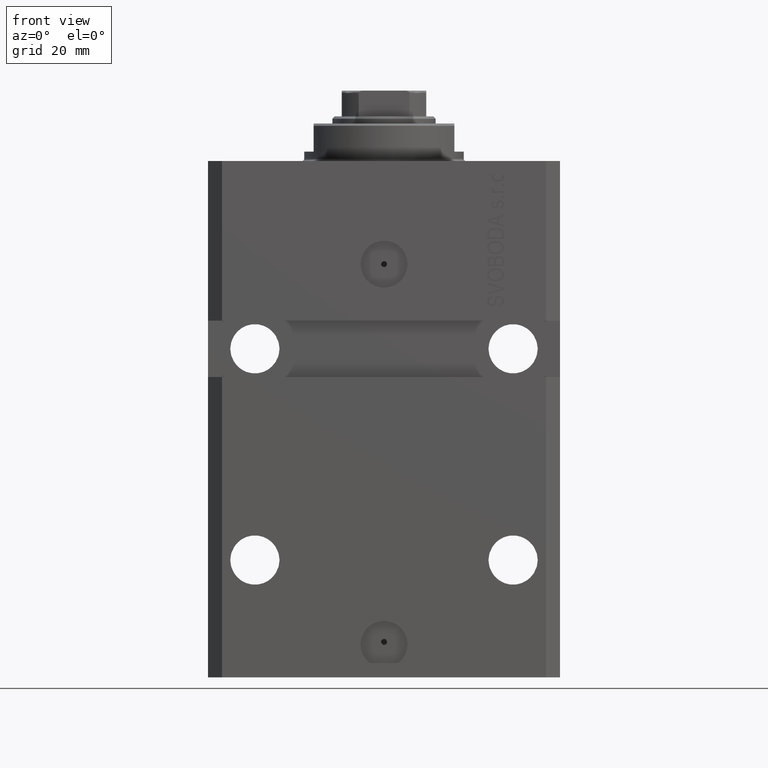
[diagram: clean part render]
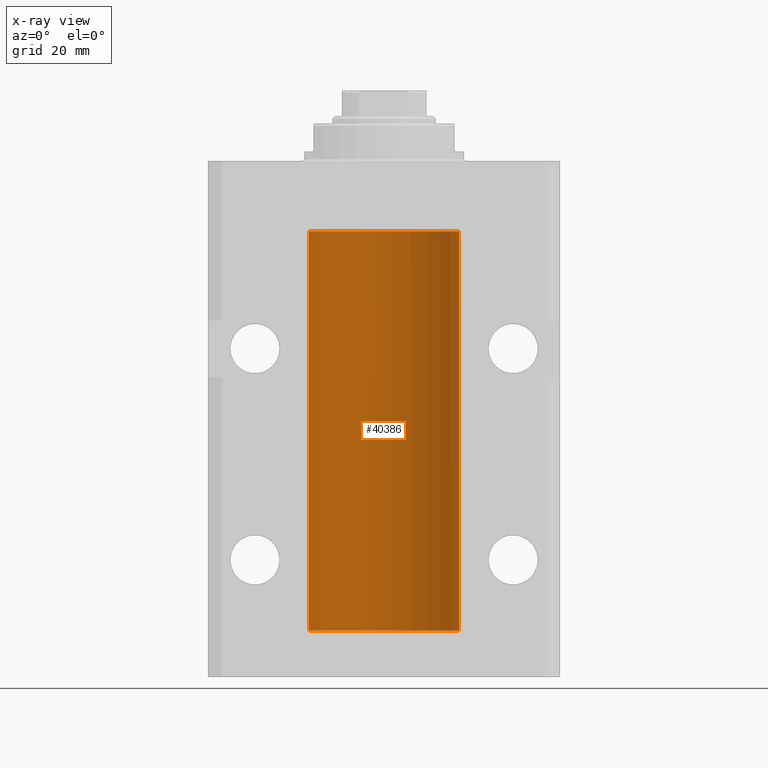
[diagram: x-ray — body ghosted, one internal face saturated and labeled with its STEP entity id]
A machine part, front view, then the same camera in x-ray: the body is ghosted and one INTERNAL B-rep face — a face not visible from any outside direction — is saturated and labeled: STEP entity #40386.
In plain terms, the highlighted cylindrical surface (partial cylindrical patch) has radius 16 mm, axis along (0, 0, 1).
Its self-contained STEP definition (entity closure, byte-faithful):
#497 = CARTESIAN_POINT ( 'NONE',  ( -15.99934216141748244, 0.1636497843296308152, -97.39126528029306940 ) ) ;
#566 = LINE ( 'NONE', #17901, #5477 ) ;
#1324 = EDGE_CURVE ( 'NONE', #40735, #28579, #41414, .T. ) ;
#1443 = CARTESIAN_POINT ( 'NONE',  ( -16.00000000000000000, 1.643679961284177128E-16, -21.37499999999999645 ) ) ;
#2154 = DIRECTION ( 'NONE',  ( 1.000000000000000000, 0.000000000000000000, 0.000000000000000000 ) ) ;
#2254 = CARTESIAN_POINT ( 'NONE',  ( 15.99707608081895138, 0.3151028052310259620, -98.54594170697734512 ) ) ;
#2344 = CARTESIAN_POINT ( 'NONE',  ( -16.00000000000000000, -1.303459030566954747E-14, -97.37500000000000000 ) ) ;
#2457 = CARTESIAN_POINT ( 'NONE',  ( 0.000000000000000000, 0.000000000000000000, -15.00000000000000000 ) ) ;
#2486 = CARTESIAN_POINT ( 'NONE',  ( 15.99934183755190986, 0.1636877470527013101, -98.60872690654072414 ) ) ;
#2879 = EDGE_CURVE ( 'NONE', #34371, #35951, #38108, .T. ) ;
#3049 = EDGE_LOOP ( 'NONE', ( #26009, #30088, #27800, #34888, #32195, #25409, #33610, #15082, #31823, #37750, #31287, #8540, #7197, #3443 ) ) ;
#3443 = ORIENTED_EDGE ( 'NONE', *, *, #1324, .T. ) ;
#3480 = CARTESIAN_POINT ( 'NONE',  ( -15.99070653155267685, 0.5573233280232928744, -97.67348148680505915 ) ) ;
#3526 = VERTEX_POINT ( 'NONE', #45086 ) ;
#3693 = CARTESIAN_POINT ( 'NONE',  ( -15.99070426498503572, 0.5462220647145610286, -98.31460064614144301 ) ) ;
#4154 = B_SPLINE_CURVE_WITH_KNOTS ( 'NONE', 3,
 ( #39176, #38723, #15203, #31868, #32319, #42367, #7909, #21816 ),
 .UNSPECIFIED., .F., .F.,
 ( 4, 2, 2, 4 ),
 ( 0.0009773326288699671956, 0.001221554802188560499, 0.001465776975507153803, 0.001954221322144333254 ),
 .UNSPECIFIED. ) ;
#5253 = EDGE_CURVE ( 'NONE', #36010, #24627, #42025, .T. ) ;
#5339 = CARTESIAN_POINT ( 'NONE',  ( -16.00000000000000711, 0.08259886010189904093, -21.37500000000000000 ) ) ;
#5477 = VECTOR ( 'NONE', #24752, 1000.000000000000000 ) ;
#5766 = DIRECTION ( 'NONE',  ( -0.000000000000000000, -0.000000000000000000, 1.000000000000000000 ) ) ;
#5901 = CARTESIAN_POINT ( 'NONE',  ( 16.00000000000001066, 0.08261762387943044628, -98.62500000000001421 ) ) ;
#6033 = CARTESIAN_POINT ( 'NONE',  ( 16.00000000000000000, -7.378931128587136680E-16, -22.62500000000000000 ) ) ;
#6084 = CARTESIAN_POINT ( 'NONE',  ( 15.98778830858070954, 0.6250000000079481977, -21.99999999999914735 ) ) ;
#6366 = B_SPLINE_CURVE_WITH_KNOTS ( 'NONE', 3,
 ( #6033, #34083, #19278, #44159, #40269, #19501, #29765, #26796 ),
 .UNSPECIFIED., .F., .F.,
 ( 4, 2, 2, 4 ),
 ( 1.864948331951035013E-18, 0.0002443331572174913110, 0.0004886663144349807789, 0.0009773326288699671956 ),
 .UNSPECIFIED. ) ;
#6565 = CARTESIAN_POINT ( 'NONE',  ( -16.00000000000000000, 1.959434878635765131E-15, -100.0999999999999943 ) ) ;
#6764 = EDGE_CURVE ( 'NONE', #24627, #34371, #32203, .T. ) ;
#7197 = ORIENTED_EDGE ( 'NONE', *, *, #42353, .F. ) ;
#7383 = CARTESIAN_POINT ( 'NONE',  ( 16.00000000000000000, 0.000000000000000000, -15.00000000000000000 ) ) ;
#7569 = CARTESIAN_POINT ( 'NONE',  ( -15.99711699979841661, 0.3253759916140614439, -98.55856151623174810 ) ) ;
#7909 = CARTESIAN_POINT ( 'NONE',  ( 15.99999999999999289, 0.1631343969470014366, -21.37500000000020606 ) ) ;
#8237 = CARTESIAN_POINT ( 'NONE',  ( 16.00000000000000000, -1.835653844722709729E-15, -98.62500000000000000 ) ) ;
#8424 = B_SPLINE_CURVE_WITH_KNOTS ( 'NONE', 3,
 ( #1443, #5339, #16261, #43460, #16031, #43673, #29946, #30173, #12855, #40685, #43900, #26767, #12630, #37267 ),
 .UNSPECIFIED., .F., .F.,
 ( 4, 2, 2, 2, 2, 2, 4 ),
 ( 1.597328219370744179E-19, 0.0002442776652680942405, 0.0004885553305361882643, 0.0009771106610723839011, 0.001221388326340481665, 0.001465665991608579430, 0.001954221322144767369 ),
 .UNSPECIFIED. ) ;
#8540 = ORIENTED_EDGE ( 'NONE', *, *, #14992, .T. ) ;
#9308 = DIRECTION ( 'NONE',  ( 1.000000000000000000, 0.000000000000000000, 0.000000000000000000 ) ) ;
#9333 = CARTESIAN_POINT ( 'NONE',  ( 15.99070366873610283, 0.5574063959867601170, -98.32639436837558833 ) ) ;
#9506 = AXIS2_PLACEMENT_3D ( 'NONE', #33405, #26794, #2154 ) ;
#10102 = CARTESIAN_POINT ( 'NONE',  ( 16.00000000000000000, 0.000000000000000000, -100.0999999999999943 ) ) ;
#10134 = CARTESIAN_POINT ( 'NONE',  ( -16.00000000000000000, 1.959434878635765131E-15, -100.0999999999999943 ) ) ;
#10519 = VERTEX_POINT ( 'NONE', #7383 ) ;
#10773 = CARTESIAN_POINT ( 'NONE',  ( -15.98844267028590949, 0.6088369347963275002, -98.16324735024325321 ) ) ;
#12538 = VECTOR ( 'NONE', #13907, 1000.000000000000000 ) ;
#12630 = CARTESIAN_POINT ( 'NONE',  ( -16.00000000000000000, 0.1631714642025800244, -22.62499999999985789 ) ) ;
#12855 = CARTESIAN_POINT ( 'NONE',  ( -15.98844267028591482, 0.6088369347963316081, -22.16324735024328518 ) ) ;
#13355 = FACE_OUTER_BOUND ( 'NONE', #3049, .T. ) ;
#13907 = DIRECTION ( 'NONE',  ( -0.000000000000000000, -0.000000000000000000, 1.000000000000000000 ) ) ;
#13966 = EDGE_CURVE ( 'NONE', #37080, #10519, #27431, .T. ) ;
#14094 = DIRECTION ( 'NONE',  ( -0.000000000000000000, -0.000000000000000000, 1.000000000000000000 ) ) ;
#14891 = EDGE_CURVE ( 'NONE', #45093, #40575, #566, .T. ) ;
#14992 = EDGE_CURVE ( 'NONE', #45093, #27324, #8424, .T. ) ;
#15082 = ORIENTED_EDGE ( 'NONE', *, *, #24330, .T. ) ;
#15145 = CARTESIAN_POINT ( 'NONE',  ( -16.00000000000000000, 1.959434878635765131E-15, -15.00000000000000000 ) ) ;
#15203 = CARTESIAN_POINT ( 'NONE',  ( 15.98844460043492077, 0.6087869699336542206, -21.83657454967558564 ) ) ;
#15861 = CARTESIAN_POINT ( 'NONE',  ( 16.00000000000000000, 0.000000000000000000, -100.0999999999999943 ) ) ;
#16031 = CARTESIAN_POINT ( 'NONE',  ( -15.99548640841683067, 0.3843705577988847377, -21.50046628527008608 ) ) ;
#16261 = CARTESIAN_POINT ( 'NONE',  ( -15.99934216141748244, 0.1636497843296417787, -21.39126528029306229 ) ) ;
#16346 = CARTESIAN_POINT ( 'NONE',  ( -16.00000000000013145, 3.685127038166941002E-13, -22.62500000000341771 ) ) ;
#17443 = CARTESIAN_POINT ( 'NONE',  ( 15.99999999999999645, 0.1631343969470158417, -97.37500000000021316 ) ) ;
#17901 = CARTESIAN_POINT ( 'NONE',  ( -16.00000000000000000, 1.959434878635765131E-15, -100.0999999999999943 ) ) ;
#19278 = CARTESIAN_POINT ( 'NONE',  ( 15.99934183755191341, 0.1636877470526788836, -22.60872690654067796 ) ) ;
#19289 = LINE ( 'NONE', #15861, #41730 ) ;
#19501 = CARTESIAN_POINT ( 'NONE',  ( 15.99070366873610638, 0.5574063959866681905, -22.32639436837549596 ) ) ;
#19571 = DIRECTION ( 'NONE',  ( 0.000000000000000000, 0.000000000000000000, 1.000000000000000000 ) ) ;
#19739 = CYLINDRICAL_SURFACE ( 'NONE', #33025, 16.00000000000000000 ) ;
#20193 = DIRECTION ( 'NONE',  ( 1.000000000000000000, 0.000000000000000000, 0.000000000000000000 ) ) ;
#20876 = CARTESIAN_POINT ( 'NONE',  ( 15.99070695999103542, 0.5461439696927204990, -97.68526802364048933 ) ) ;
#20938 = LINE ( 'NONE', #6565, #24614 ) ;
#21816 = CARTESIAN_POINT ( 'NONE',  ( 16.00000000000013145, 3.665532680419208314E-13, -21.37499999999658229 ) ) ;
#22035 = DIRECTION ( 'NONE',  ( -0.000000000000000000, -0.000000000000000000, 1.000000000000000000 ) ) ;
#23465 = CARTESIAN_POINT ( 'NONE',  ( 15.98778830858101685, 0.6250000000002223777, -98.16311639173024162 ) ) ;
#24071 = CARTESIAN_POINT ( 'NONE',  ( 15.99228275317786441, 0.5002975944204781644, -97.61642014570176684 ) ) ;
#24160 = EDGE_CURVE ( 'NONE', #10519, #40575, #40605, .T. ) ;
#24330 = EDGE_CURVE ( 'NONE', #30282, #37080, #4154, .T. ) ;
#24466 = CARTESIAN_POINT ( 'NONE',  ( -15.99228023727724057, 0.5003781296993360383, -98.38347829554236057 ) ) ;
#24614 = VECTOR ( 'NONE', #14094, 1000.000000000000000 ) ;
#24627 = VERTEX_POINT ( 'NONE', #39957 ) ;
#24752 = DIRECTION ( 'NONE',  ( -0.000000000000000000, -0.000000000000000000, 1.000000000000000000 ) ) ;
#25133 = CARTESIAN_POINT ( 'NONE',  ( -15.99999999999998934, 0.1631714642025804407, -98.62499999999987210 ) ) ;
#25155 = EDGE_CURVE ( 'NONE', #26228, #28579, #20938, .T. ) ;
#25409 = ORIENTED_EDGE ( 'NONE', *, *, #2879, .T. ) ;
#26009 = ORIENTED_EDGE ( 'NONE', *, *, #25155, .F. ) ;
#26228 = VERTEX_POINT ( 'NONE', #44197 ) ;
#26767 = CARTESIAN_POINT ( 'NONE',  ( -15.99711699979842017, 0.3253759916140657737, -22.55856151623175521 ) ) ;
#26794 = DIRECTION ( 'NONE',  ( 0.000000000000000000, 0.000000000000000000, 1.000000000000000000 ) ) ;
#26796 = CARTESIAN_POINT ( 'NONE',  ( 15.98778830858070954, 0.6250000000079481977, -21.99999999999914735 ) ) ;
#27261 = CARTESIAN_POINT ( 'NONE',  ( 16.00000000000000000, -7.378931128587136680E-16, -22.62500000000000000 ) ) ;
#27265 = CARTESIAN_POINT ( 'NONE',  ( 0.000000000000000000, 0.000000000000000000, -100.0999999999999943 ) ) ;
#27324 = VERTEX_POINT ( 'NONE', #16346 ) ;
#27431 = LINE ( 'NONE', #10102, #38960 ) ;
#27800 = ORIENTED_EDGE ( 'NONE', *, *, #35799, .T. ) ;
#28103 = CARTESIAN_POINT ( 'NONE',  ( -16.00000000000000000, -1.303459030566954747E-14, -97.37500000000000000 ) ) ;
#28579 = VERTEX_POINT ( 'NONE', #29326 ) ;
#29326 = CARTESIAN_POINT ( 'NONE',  ( -16.00000000000013145, 3.685127046438747128E-13, -98.62500000000343903 ) ) ;
#29765 = CARTESIAN_POINT ( 'NONE',  ( 15.98778830858101152, 0.6250000000001202372, -22.16311639173018477 ) ) ;
#29946 = CARTESIAN_POINT ( 'NONE',  ( -15.98779057735153941, 0.6249419637998100407, -21.83670145863507273 ) ) ;
#30088 = ORIENTED_EDGE ( 'NONE', *, *, #30573, .F. ) ;
#30173 = CARTESIAN_POINT ( 'NONE',  ( -15.98778717651346071, 0.6250289588122140971, -22.08131585687052478 ) ) ;
#30282 = VERTEX_POINT ( 'NONE', #6084 ) ;
#30573 = EDGE_CURVE ( 'NONE', #3526, #26228, #31364, .T. ) ;
#30868 = CARTESIAN_POINT ( 'NONE',  ( -16.00000000000000000, 1.643679961284177128E-16, -21.37499999999999645 ) ) ;
#31287 = ORIENTED_EDGE ( 'NONE', *, *, #14891, .F. ) ;
#31364 = CIRCLE ( 'NONE', #9506, 16.00000000000000000 ) ;
#31823 = ORIENTED_EDGE ( 'NONE', *, *, #13966, .T. ) ;
#31868 = CARTESIAN_POINT ( 'NONE',  ( 15.99070695999104252, 0.5461439696926362330, -21.68526802364053552 ) ) ;
#32195 = ORIENTED_EDGE ( 'NONE', *, *, #6764, .T. ) ;
#32203 = B_SPLINE_CURVE_WITH_KNOTS ( 'NONE', 3,
 ( #44858, #34333, #44624, #20876, #24071, #45082, #17443, #38223 ),
 .UNSPECIFIED., .F., .F.,
 ( 4, 2, 2, 4 ),
 ( 0.0009773326288700682433, 0.001221554802188685399, 0.001465776975507302772, 0.001954221322144537518 ),
 .UNSPECIFIED. ) ;
#32319 = CARTESIAN_POINT ( 'NONE',  ( 15.99228275317787507, 0.5002975944204003378, -21.61642014570181303 ) ) ;
#33025 = AXIS2_PLACEMENT_3D ( 'NONE', #27265, #37316, #20193 ) ;
#33405 = CARTESIAN_POINT ( 'NONE',  ( 0.000000000000000000, 0.000000000000000000, -100.0999999999999943 ) ) ;
#33610 = ORIENTED_EDGE ( 'NONE', *, *, #38591, .T. ) ;
#34074 = LINE ( 'NONE', #10134, #44023 ) ;
#34083 = CARTESIAN_POINT ( 'NONE',  ( 16.00000000000000000, 0.08261762387942135633, -22.62499999999996803 ) ) ;
#34333 = CARTESIAN_POINT ( 'NONE',  ( 15.98778830858103817, 0.6249999999997223332, -97.91847885046210820 ) ) ;
#34371 = VERTEX_POINT ( 'NONE', #39533 ) ;
#34767 = DIRECTION ( 'NONE',  ( -0.000000000000000000, -0.000000000000000000, 1.000000000000000000 ) ) ;
#34888 = ORIENTED_EDGE ( 'NONE', *, *, #5253, .T. ) ;
#35407 = CARTESIAN_POINT ( 'NONE',  ( -16.00000000000000711, 0.08259886010188650929, -97.37500000000000000 ) ) ;
#35799 = EDGE_CURVE ( 'NONE', #3526, #36010, #19289, .T. ) ;
#35951 = VERTEX_POINT ( 'NONE', #27261 ) ;
#36010 = VERTEX_POINT ( 'NONE', #8237 ) ;
#36142 = CARTESIAN_POINT ( 'NONE',  ( 16.00000000000013145, 3.665532680419208314E-13, -21.37499999999658229 ) ) ;
#36251 = CARTESIAN_POINT ( 'NONE',  ( -16.00000000000013145, 3.685127046438747128E-13, -98.62500000000343903 ) ) ;
#36730 = CARTESIAN_POINT ( 'NONE',  ( 15.98778830858070954, 0.6250000000080517815, -97.99999999999916156 ) ) ;
#37080 = VERTEX_POINT ( 'NONE', #36142 ) ;
#37166 = CARTESIAN_POINT ( 'NONE',  ( 16.00000000000000000, -1.835653844722709729E-15, -98.62500000000000000 ) ) ;
#37267 = CARTESIAN_POINT ( 'NONE',  ( -16.00000000000013145, 3.685127038166941002E-13, -22.62500000000341771 ) ) ;
#37316 = DIRECTION ( 'NONE',  ( -0.000000000000000000, -0.000000000000000000, 1.000000000000000000 ) ) ;
#37687 = AXIS2_PLACEMENT_3D ( 'NONE', #2457, #19571, #9308 ) ;
#37750 = ORIENTED_EDGE ( 'NONE', *, *, #24160, .T. ) ;
#38108 = LINE ( 'NONE', #45187, #12538 ) ;
#38163 = CARTESIAN_POINT ( 'NONE',  ( -15.98779057735153941, 0.6249419637998017141, -97.83670145863504786 ) ) ;
#38223 = CARTESIAN_POINT ( 'NONE',  ( 16.00000000000013145, 3.665532692826917502E-13, -97.37499999999657518 ) ) ;
#38591 = EDGE_CURVE ( 'NONE', #35951, #30282, #6366, .T. ) ;
#38723 = CARTESIAN_POINT ( 'NONE',  ( 15.98778830858104172, 0.6249999999996183053, -21.91847885046212951 ) ) ;
#38960 = VECTOR ( 'NONE', #5766, 1000.000000000000000 ) ;
#39176 = CARTESIAN_POINT ( 'NONE',  ( 15.98778830858070954, 0.6250000000079481977, -21.99999999999914735 ) ) ;
#39533 = CARTESIAN_POINT ( 'NONE',  ( 16.00000000000013145, 3.665532692826917502E-13, -97.37499999999657518 ) ) ;
#39957 = CARTESIAN_POINT ( 'NONE',  ( 15.98778830858070954, 0.6250000000080517815, -97.99999999999916156 ) ) ;
#40269 = CARTESIAN_POINT ( 'NONE',  ( 15.99548458234361803, 0.3844468804815583396, -22.49947786696350960 ) ) ;
#40386 = ADVANCED_FACE ( 'NONE', ( #13355 ), #19739, .F. ) ;
#40575 = VERTEX_POINT ( 'NONE', #15145 ) ;
#40605 = CIRCLE ( 'NONE', #37687, 16.00000000000000000 ) ;
#40685 = CARTESIAN_POINT ( 'NONE',  ( -15.99070426498503217, 0.5462220647145618058, -22.31460064614143590 ) ) ;
#40735 = VERTEX_POINT ( 'NONE', #2344 ) ;
#41414 = B_SPLINE_CURVE_WITH_KNOTS ( 'NONE', 3,
 ( #28103, #35407, #497, #42028, #41806, #3480, #38163, #42481, #10773, #3693, #24466, #7569, #25133, #36251 ),
 .UNSPECIFIED., .F., .F.,
 ( 4, 2, 2, 2, 2, 2, 4 ),
 ( 1.003919637555167698E-18, 0.0002442776652680894158, 0.0004885553305361776391, 0.0009771106610723541940, 0.001221388326340463017, 0.001465665991608572274, 0.001954221322144760863 ),
 .UNSPECIFIED. ) ;
#41730 = VECTOR ( 'NONE', #22035, 1000.000000000000000 ) ;
#41806 = CARTESIAN_POINT ( 'NONE',  ( -15.99548640841682712, 0.3843705577988784650, -97.50046628527007897 ) ) ;
#42025 = B_SPLINE_CURVE_WITH_KNOTS ( 'NONE', 3,
 ( #37166, #5901, #2486, #2254, #43586, #9333, #23465, #36730 ),
 .UNSPECIFIED., .F., .F.,
 ( 4, 2, 2, 4 ),
 ( 1.783888443149829469E-18, 0.0002443331572175257886, 0.0004886663144350497342, 0.0009773326288700682433 ),
 .UNSPECIFIED. ) ;
#42028 = CARTESIAN_POINT ( 'NONE',  ( -15.99707730059171240, 0.3150375992092294686, -97.45402333202572720 ) ) ;
#42353 = EDGE_CURVE ( 'NONE', #40735, #27324, #34074, .T. ) ;
#42367 = CARTESIAN_POINT ( 'NONE',  ( 15.99711856062700122, 0.3252985083513916242, -21.44140297987714661 ) ) ;
#42481 = CARTESIAN_POINT ( 'NONE',  ( -15.98778717651346604, 0.6250289588122097673, -98.08131585687051768 ) ) ;
#43460 = CARTESIAN_POINT ( 'NONE',  ( -15.99707730059171240, 0.3150375992092407373, -21.45402333202571654 ) ) ;
#43586 = CARTESIAN_POINT ( 'NONE',  ( 15.99548458234361448, 0.3844468804816183471, -98.49947786696355934 ) ) ;
#43673 = CARTESIAN_POINT ( 'NONE',  ( -15.99070653155267685, 0.5573233280232986475, -21.67348148680506625 ) ) ;
#43900 = CARTESIAN_POINT ( 'NONE',  ( -15.99228023727724413, 0.5003781296993413674, -22.38347829554236057 ) ) ;
#44023 = VECTOR ( 'NONE', #34767, 1000.000000000000000 ) ;
#44159 = CARTESIAN_POINT ( 'NONE',  ( 15.99707608081895494, 0.3151028052309814975, -22.54594170697728117 ) ) ;
#44197 = CARTESIAN_POINT ( 'NONE',  ( -16.00000000000000000, 1.959434878635765131E-15, -100.0999999999999943 ) ) ;
#44624 = CARTESIAN_POINT ( 'NONE',  ( 15.98844460043491367, 0.6087869699337551399, -97.83657454967556077 ) ) ;
#44858 = CARTESIAN_POINT ( 'NONE',  ( 15.98778830858070954, 0.6250000000080517815, -97.99999999999916156 ) ) ;
#45082 = CARTESIAN_POINT ( 'NONE',  ( 15.99711856062700477, 0.3252985083514284281, -97.44140297987712529 ) ) ;
#45086 = CARTESIAN_POINT ( 'NONE',  ( 16.00000000000000000, 0.000000000000000000, -100.0999999999999943 ) ) ;
#45093 = VERTEX_POINT ( 'NONE', #30868 ) ;
#45187 = CARTESIAN_POINT ( 'NONE',  ( 16.00000000000000000, 0.000000000000000000, -100.0999999999999943 ) ) ;